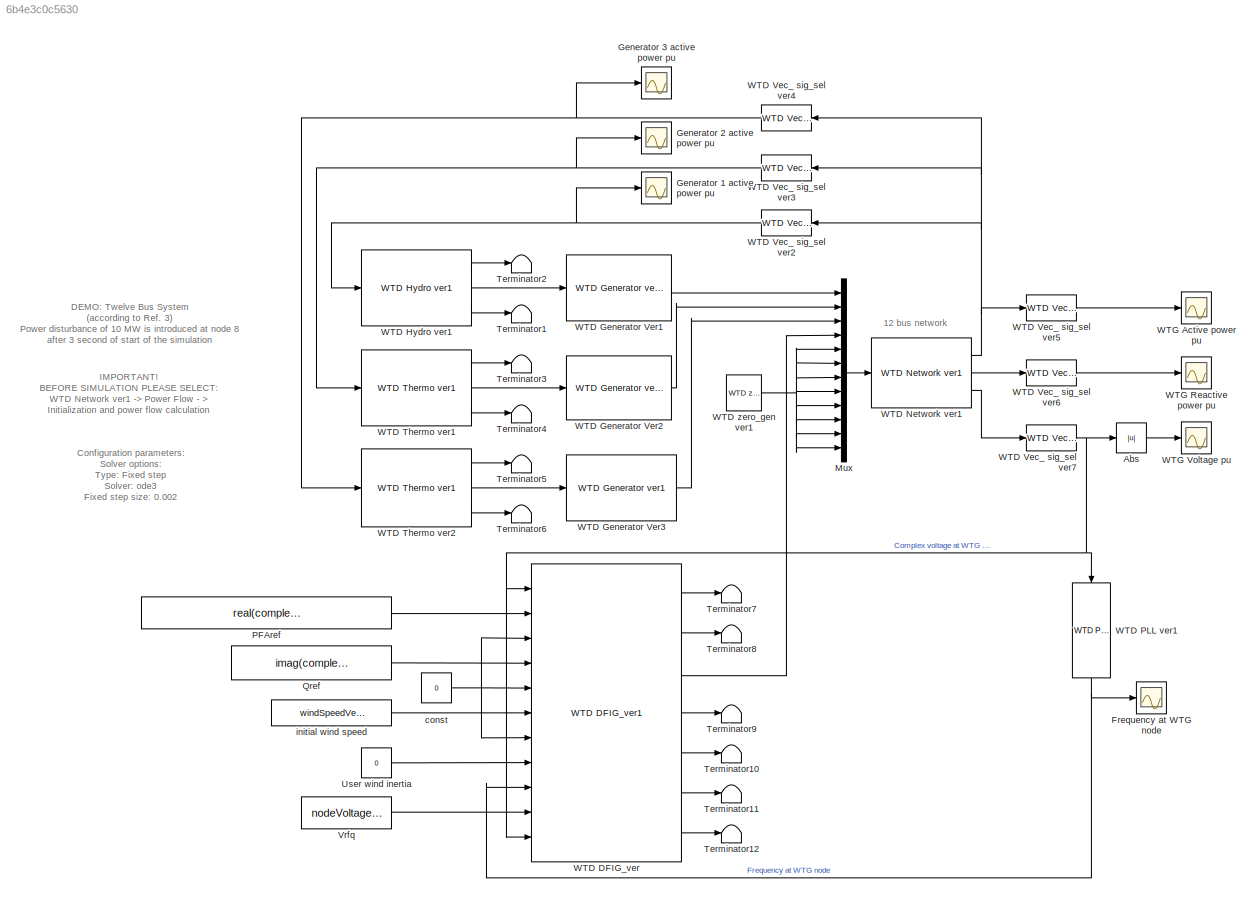
MODEL slx_6b4e3c0c5630
KIND model
BLOCK [Abs] Abs
  SaturateOnIntegerOverflow = off
BLOCK [Scope] Frequency at WTG node
  DataFormat = StructureWithTime
  Floating = off
  MaxDataPoints = 50000
  NumInputPorts = 1
  Ports = [1]
  SampleTime = 0
  SaveName = ScopeData1
  ShowLegends = off
  YMax = 1.001
  YMin = 0.997
BLOCK [Scope] Generator 1 active power pu
  DataFormat = StructureWithTime
  Floating = off
  MaxDataPoints = 50000
  NumInputPorts = 1
  Ports = [1]
  SampleTime = 0
  SaveName = ScopeData4
  ShowLegends = off
  YMax = 0.83
  YMin = 0.71
BLOCK [Scope] Generator 2 active power pu
  DataFormat = StructureWithTime
  Floating = off
  MaxDataPoints = 50000
  NumInputPorts = 1
  Ports = [1]
  SampleTime = 0
  SaveName = ScopeData3
  ShowLegends = off
  YMax = 1.12
  YMin = 1.02
BLOCK [Scope] Generator 3 active power pu
  DataFormat = StructureWithTime
  Floating = off
  MaxDataPoints = 50000
  NumInputPorts = 1
  Ports = [1]
  SampleTime = 0
  ShowLegends = off
  YMax = 0.9
  YMin = 0.84
BLOCK [Mux] Mux
  DisplayOption = bar
  Inputs = 12
  Ports = [12, 1]
BLOCK [Constant] PFAref
  Value = real(complexPower (4))/abs(complexPower (4))
BLOCK [Constant] Qref
  Value = imag(complexPower (4))
BLOCK [Terminator] Terminator1
BLOCK [Terminator] Terminator10
BLOCK [Terminator] Terminator11
BLOCK [Terminator] Terminator12
BLOCK [Terminator] Terminator2
BLOCK [Terminator] Terminator3
BLOCK [Terminator] Terminator4
BLOCK [Terminator] Terminator5
BLOCK [Terminator] Terminator6
BLOCK [Terminator] Terminator7
BLOCK [Terminator] Terminator8
BLOCK [Terminator] Terminator9
BLOCK [Constant] User wind inertia
  Value = 0
BLOCK [Constant] Vrfq
  Value = nodeVoltage (4)
BLOCK [Reference] WTD DFIG_ver  REF=wtd_library_ver1/WTD DFIG_ver1  (lib defined in slx_bdb9e66360e7)
  H = 4.94
  KVi = 40
  Ka = windturbKaParam
  Kb = windturbKbParam
  Kitrq = 0.6
  Kiv = 5
  Kptrq = 3
  Kpv = 18
  Kqd = 0
  Kwi = 10
  Pelec4abs = real(complexPower)*baseSystemPower
  Pmnwi = 0
  Pmxwi = 0.1
  Ports = [11, 7]
  Qgen4abs = imag(complexPower)*baseSystemPower
  Qmax = 0.436
  Qmin = -0.436
  Sbasem4 = 100.5
  Sbasesys = baseSystemPower
  SourceBlock = wtd_library_ver1/WTD DFIG_ver1
  TIpwi = 1
  Tpc = 0.05
  Twowi = 5.5
  Vwinit = nodeVoltage
  Xsecsys = genTranReactance
  apcflg = 0
  co_node = 4
  dbwi = 0.0025
  drlwi = -1
  insupp = 0
  pfaflg = 0
  theta = pitchAngleVec
  urlwi = 0.1
  varflg = 1
  w = turbSpeedVec
  wbase = 2*pi*systemFrequency
  wi_user_GE = 0
BLOCK [Reference] WTD Generator Ver1  REF=wtd_library_ver1/WTD Generator ver1  (lib defined in slx_bdb9e66360e7)
  E = internalGenVoltage
  Ports = [1, 1]
  SourceBlock = wtd_library_ver1/WTD Generator ver1
  co_node = 1
  jxd = genTranReactance
BLOCK [Reference] WTD Generator Ver2  REF=wtd_library_ver1/WTD Generator ver1  (lib defined in slx_bdb9e66360e7)
  E = internalGenVoltage
  Ports = [1, 1]
  SourceBlock = wtd_library_ver1/WTD Generator ver1
  co_node = 2
  jxd = genTranReactance
BLOCK [Reference] WTD Generator Ver3  REF=wtd_library_ver1/WTD Generator ver1  (lib defined in slx_bdb9e66360e7)
  E = internalGenVoltage
  Ports = [1, 1]
  SourceBlock = wtd_library_ver1/WTD Generator ver1
  co_node = 3
  jxd = genTranReactance
BLOCK [Reference] WTD Hydro ver1  REF=wtd_library_ver1/WTD Hydro ver1  (lib defined in slx_bdb9e66360e7)
  At1 = 1
  D1 = 2
  Dturb1 = 0
  Gmax1 = 1
  Gmin1 = 0
  H1 = 2364/247.5
  Pm_init_vec = real(complexPower)*baseSystemPower
  Ports = [1, 3]
  R11 = 0.05
  Sbasem1 = 247.5
  Sbasesys = baseSystemPower
  SourceBlock = wtd_library_ver1/WTD Hydro ver1
  Tf1 = 0.05
  Tg1 = 0.2
  Tr1 = 8
  Tw1 = 1.2
  VELM1 = 0.2
  co_node = 1
  delta_init_vec = angle(internalGenVoltage)
  qNL1 = 0.068
  r1 = 0.4
  wbase = 2*pi*systemFrequency
BLOCK [Reference] WTD Network ver1  REF=wtd_library_ver1/WTD Network ver1  (lib defined in slx_bdb9e66360e7)
  Ka = 0.00159
  Kb = 56.6
  Pbasemw = 100.5
  Ports = [1, 3]
  Saddabs = 10
  Sbasesys = 100
  Sgenabs_co = [103,0,85]
  Sgenabs_wi = 60
  Sloadabs = [90+j*30,125+j*50,100+j*35]
  SourceBlock = wtd_library_ver1/WTD Network ver1
  Tclear = inf
  Tfault = 3
  Y2df = WTD_Y12_2
  Ydf = WTD_Y12
  absV_co = [1.025,1.04,1.025]
  absV_wi = 1.031
  fltimp = 10.32
  flttype = Power
  fsystem = 50
  linenumber = 1
  no_gen_co = 3
  no_gen_wi = 1
  nodeadd = 8
  nodes_co = [2,1,3]
  nodes_lo = [6,5,8]
  nodes_wi = 4
  pfcalc = off
  pffault = on
  vw_vector = 14
  wi_choice = Active_power
  xd_co = [0.1198,0.0608,0.1813]
  xd_wi = 0.8
BLOCK [Reference] WTD PLL ver1  REF=wtd_library_ver1/WTD PLL ver1  (lib defined in slx_bdb9e66360e7)
  KiPLL = 0
  KpPLL = 30
  Ports = [1, 1]
  SourceBlock = wtd_library_ver1/WTD PLL ver1
  delta_init_vec = angle(nodeVoltage )
  me_node = 4
  wbase = 2*pi*systemFrequency
BLOCK [Reference] WTD Thermo ver1  REF=wtd_library_ver1/WTD Thermo ver1  (lib defined in slx_bdb9e66360e7)
  D2 = 2
  Dt2 = 0
  H2 = 640/192
  Pm_init_vec = real(complexPower)*baseSystemPower
  Ports = [1, 3]
  R2 = 0.05
  Sbasem2 = 192
  Sbasesys = baseSystemPower
  SourceBlock = wtd_library_ver1/WTD Thermo ver1
  T12 = 0.2
  T22 = 0.3*7
  T32 = 7
  Vmax2 = 1
  Vmin2 = 0
  co_node = 2
  delta_init_vec = angle(internalGenVoltage)
  wbase = 2*pi*systemFrequency
BLOCK [Reference] WTD Thermo ver2  REF=wtd_library_ver1/WTD Thermo ver1  (lib defined in slx_bdb9e66360e7)
  D2 = 2
  Dt2 = 0
  H2 = 301/128
  Pm_init_vec = real(complexPower)*baseSystemPower
  Ports = [1, 3]
  R2 = 0.05
  Sbasem2 = 128
  Sbasesys = baseSystemPower
  SourceBlock = wtd_library_ver1/WTD Thermo ver1
  T12 = 0.2
  T22 = 0.3*7
  T32 = 7
  Vmax2 = 1
  Vmin2 = 0
  co_node = 3
  delta_init_vec = angle(internalGenVoltage)
  wbase = 2*pi*systemFrequency
BLOCK [Reference] WTD Vec_ sig_sel ver2  REF=wtd_library_ver1/WTD Vec_ sig_sel ver1  (lib defined in slx_bdb9e66360e7)
  Ports = [1, 1]
  SourceBlock = wtd_library_ver1/WTD Vec_ sig_sel ver1
  node = 1
BLOCK [Reference] WTD Vec_ sig_sel ver3  REF=wtd_library_ver1/WTD Vec_ sig_sel ver1  (lib defined in slx_bdb9e66360e7)
  Ports = [1, 1]
  SourceBlock = wtd_library_ver1/WTD Vec_ sig_sel ver1
  node = 2
BLOCK [Reference] WTD Vec_ sig_sel ver4  REF=wtd_library_ver1/WTD Vec_ sig_sel ver1  (lib defined in slx_bdb9e66360e7)
  Ports = [1, 1]
  SourceBlock = wtd_library_ver1/WTD Vec_ sig_sel ver1
  node = 3
BLOCK [Reference] WTD Vec_ sig_sel ver5  REF=wtd_library_ver1/WTD Vec_ sig_sel ver1  (lib defined in slx_bdb9e66360e7)
  Ports = [1, 1]
  SourceBlock = wtd_library_ver1/WTD Vec_ sig_sel ver1
  node = 4
BLOCK [Reference] WTD Vec_ sig_sel ver6  REF=wtd_library_ver1/WTD Vec_ sig_sel ver1  (lib defined in slx_bdb9e66360e7)
  Ports = [1, 1]
  SourceBlock = wtd_library_ver1/WTD Vec_ sig_sel ver1
  node = 4
BLOCK [Reference] WTD Vec_ sig_sel ver7  REF=wtd_library_ver1/WTD Vec_ sig_sel ver1  (lib defined in slx_bdb9e66360e7)
  Ports = [1, 1]
  SourceBlock = wtd_library_ver1/WTD Vec_ sig_sel ver1
  node = 4
BLOCK [Reference] WTD zero_gen ver1  REF=wtd_library_ver1/WTD zero_gen ver1  (lib defined in slx_bdb9e66360e7)
  Ports = [0, 1]
  SourceBlock = wtd_library_ver1/WTD zero_gen ver1
BLOCK [Scope] WTG Active power pu
  DataFormat = StructureWithTime
  Floating = off
  MaxDataPoints = 50000
  NumInputPorts = 1
  Ports = [1]
  SampleTime = 0
  SaveName = ScopeData5
  ShowLegends = off
  TimeRange = 30
  YMax = 0.6175
  YMin = 0.5775
BLOCK [Scope] WTG Reactive power pu
  DataFormat = StructureWithTime
  Floating = off
  MaxDataPoints = 50000
  NumInputPorts = 1
  Ports = [1]
  SampleTime = 0
  SaveName = ScopeData6
  ShowLegends = off
  YMax = -0.02
  YMin = -0.032
BLOCK [Scope] WTG Voltage pu
  DataFormat = StructureWithTime
  Floating = off
  MaxDataPoints = 50000
  NumInputPorts = 1
  Ports = [1]
  SampleTime = 0
  SaveName = ScopeData7
  ShowLegends = off
  YMax = 1.0315
  YMin = 1.029
BLOCK [Constant] const
  Value = 0
BLOCK [Constant] initial wind speed
  Value = windSpeedVec(4)
ANNOTATION (root): 12 bus network
ANNOTATION (root): Configuration parameters: Solver options: Type: Fixed step Solver: ode3 Fixed step size: 0.002
ANNOTATION (root): DEMO: Twelve Bus System (according to Ref. 3) Power disturbance of 10 MW is introduced at node 8 after 3 second of start of the simulation
ANNOTATION (root): IMPORTANT! BEFORE SIMULATION PLEASE SELECT: WTD Network ver1 -> Power Flow - > Initialization and power flow calculation
LINE Abs:1 -> WTG Voltage pu:1
LINE Mux:1 -> WTD Network ver1:1
LINE PFAref:1 -> WTD DFIG_ver:2
LINE Qref:1 -> WTD DFIG_ver:4
LINE User wind inertia:1 -> WTD DFIG_ver:8
LINE Vrfq:1 -> WTD DFIG_ver:10
LINE WTD DFIG_ver:1 -> Terminator7:1
LINE WTD DFIG_ver:2 -> Terminator8:1
LINE WTD DFIG_ver:3 -> Mux:4
LINE WTD DFIG_ver:4 -> Terminator9:1
LINE WTD DFIG_ver:5 -> Terminator10:1
LINE WTD DFIG_ver:6 -> Terminator11:1
LINE WTD DFIG_ver:7 -> Terminator12:1
LINE WTD Generator Ver1:1 -> Mux:1
LINE WTD Generator Ver2:1 -> Mux:2
LINE WTD Generator Ver3:1 -> Mux:3
LINE WTD Hydro ver1:1 -> Terminator2:1
LINE WTD Hydro ver1:2 -> WTD Generator Ver1:1
LINE WTD Hydro ver1:3 -> Terminator1:1
NET WTD Network ver1:1 -> WTD Vec_ sig_sel ver2:1, WTD Vec_ sig_sel ver3:1, WTD Vec_ sig_sel ver4:1, WTD Vec_ sig_sel ver5:1
LINE WTD Network ver1:2 -> WTD Vec_ sig_sel ver6:1
LINE WTD Network ver1:3 -> WTD Vec_ sig_sel ver7:1
NET WTD PLL ver1:1 -> Frequency at WTG node:1, WTD DFIG_ver:9
LINE WTD Thermo ver1:1 -> Terminator3:1
LINE WTD Thermo ver1:2 -> WTD Generator Ver2:1
LINE WTD Thermo ver1:3 -> Terminator4:1
LINE WTD Thermo ver2:1 -> Terminator5:1
LINE WTD Thermo ver2:2 -> WTD Generator Ver3:1
LINE WTD Thermo ver2:3 -> Terminator6:1
NET WTD Vec_ sig_sel ver2:1 -> Generator 1 active power pu:1, WTD Hydro ver1:1
NET WTD Vec_ sig_sel ver3:1 -> Generator 2 active power pu:1, WTD Thermo ver1:1
NET WTD Vec_ sig_sel ver4:1 -> Generator 3 active power pu:1, WTD Thermo ver2:1
LINE WTD Vec_ sig_sel ver5:1 -> WTG Active power pu:1
LINE WTD Vec_ sig_sel ver6:1 -> WTG Reactive power pu:1
NET WTD Vec_ sig_sel ver7:1 -> Abs:1, WTD DFIG_ver:1, WTD DFIG_ver:11, WTD PLL ver1:1
NET WTD zero_gen ver1:1 -> Mux:10, Mux:11, Mux:12, Mux:5, Mux:6, Mux:7, Mux:8, Mux:9
NET const:1 -> WTD DFIG_ver:3, WTD DFIG_ver:5, WTD DFIG_ver:7
LINE initial wind speed:1 -> WTD DFIG_ver:6
note: NET lines group one-source signal fan-out (src -> all destinations, sorted); 1:1 wires keep LINE
